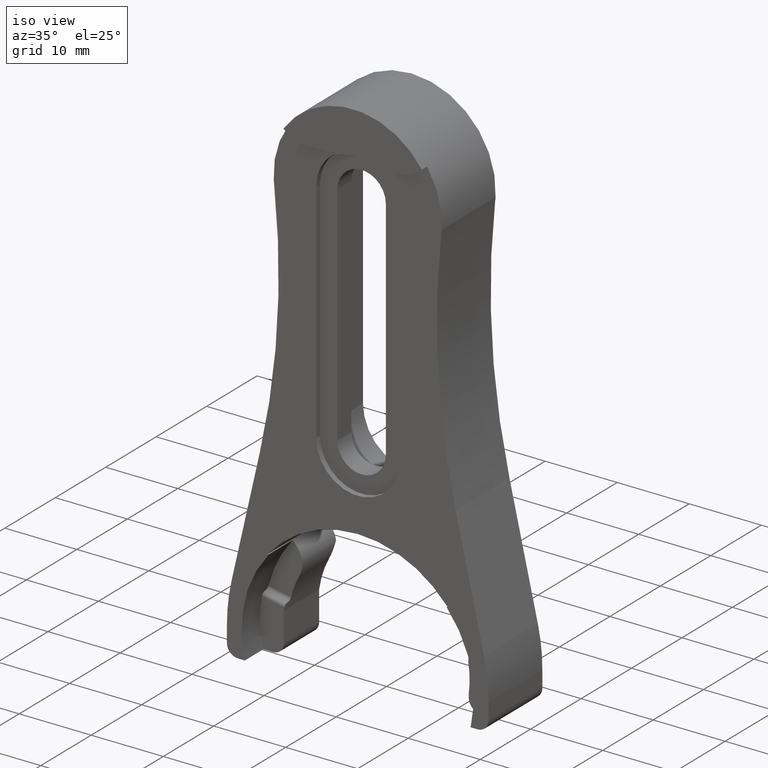
[diagram: clean part render]
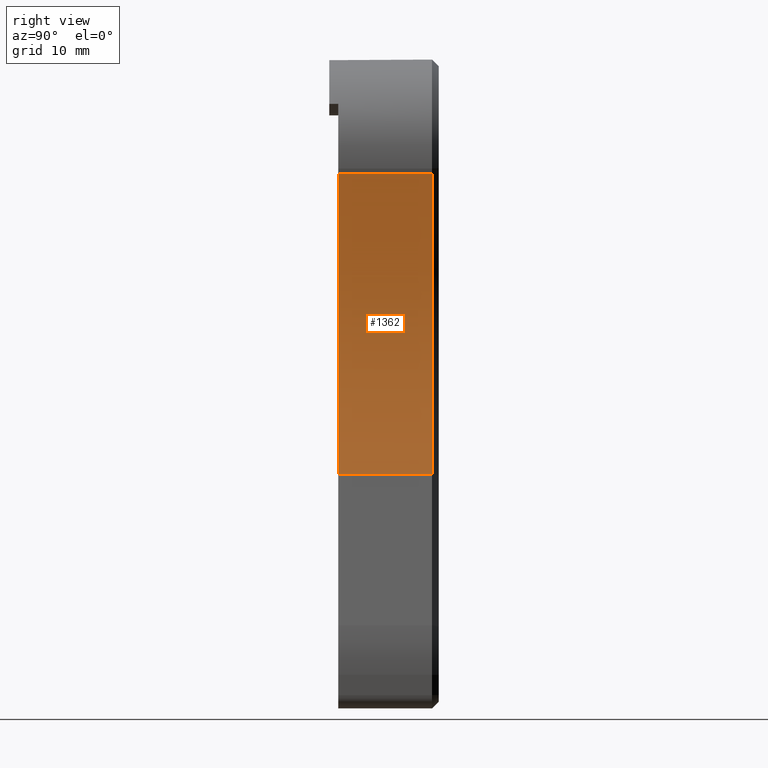
[diagram: tour spotlight — one face highlighted and labeled with its STEP entity id]
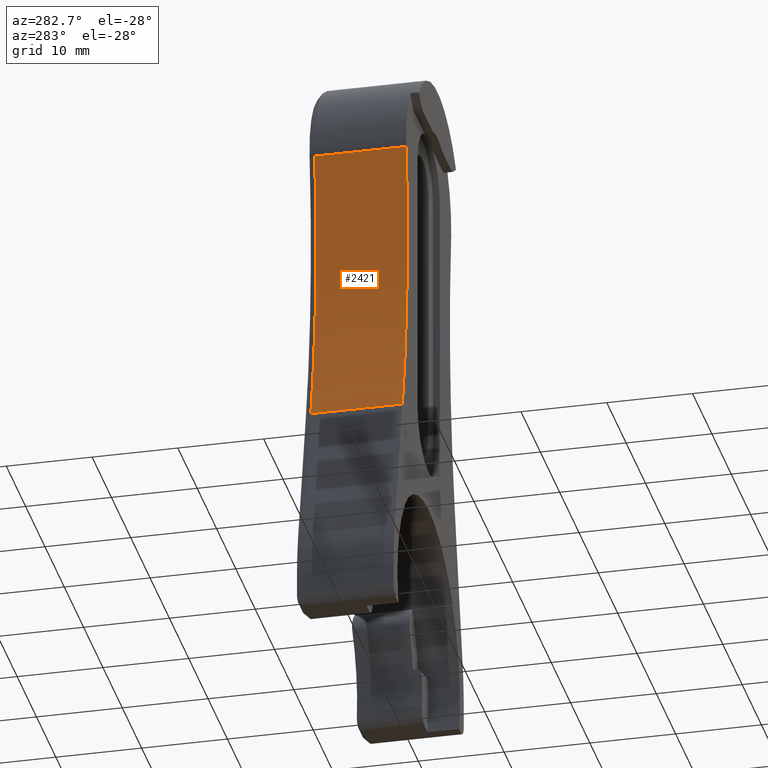
[diagram: tour spotlight — one face highlighted and labeled with its STEP entity id]
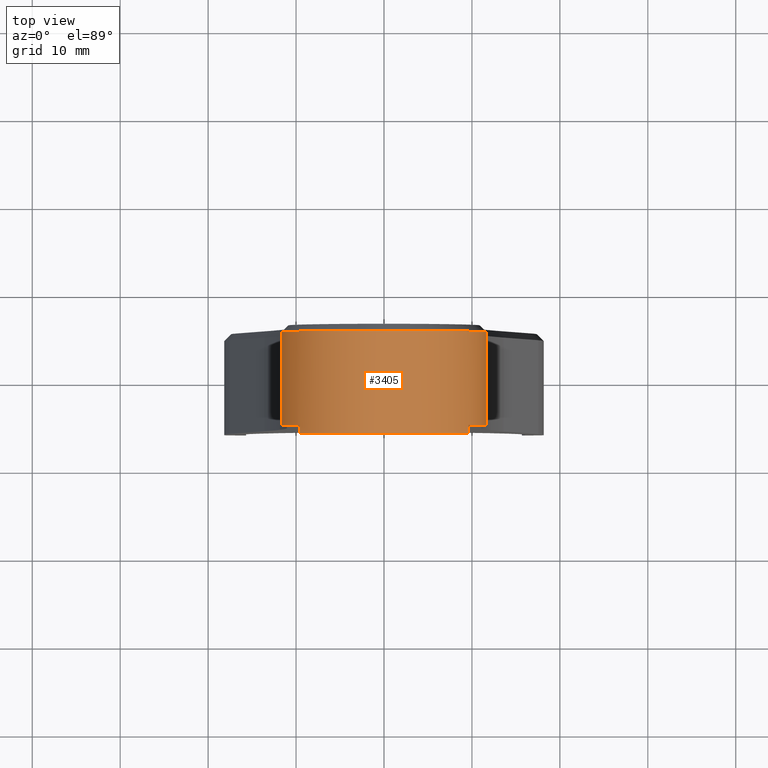
[diagram: tour spotlight — one face highlighted and labeled with its STEP entity id]
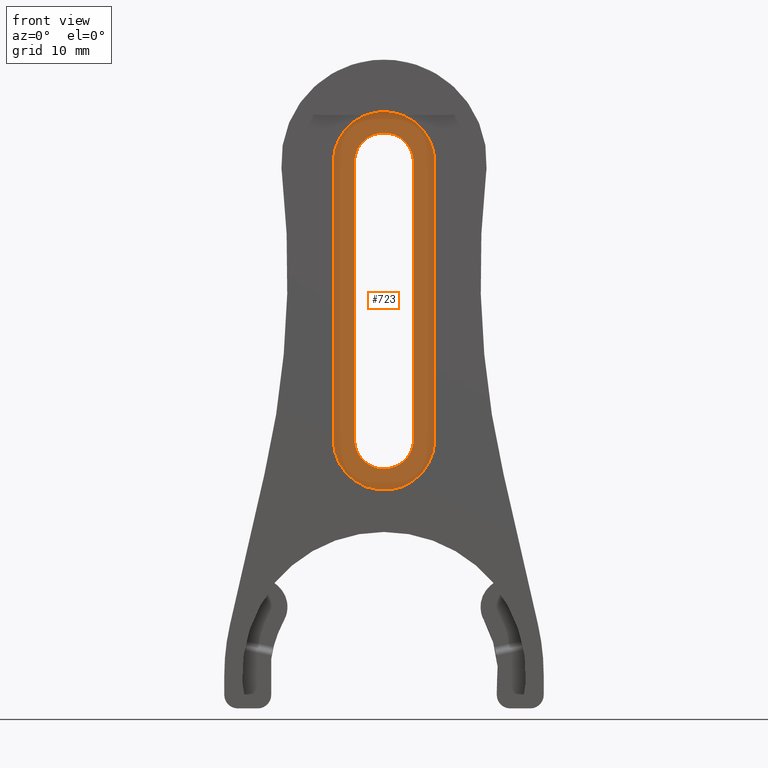
[diagram: tour spotlight — one face highlighted and labeled with its STEP entity id]
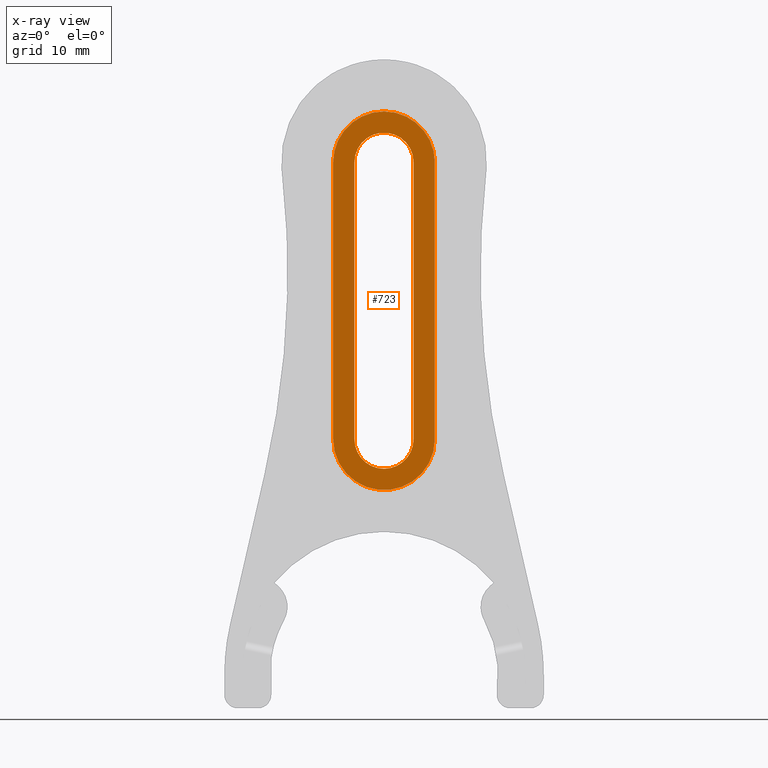
[diagram: x-ray of the same camera — body ghosted, this tour face saturated]
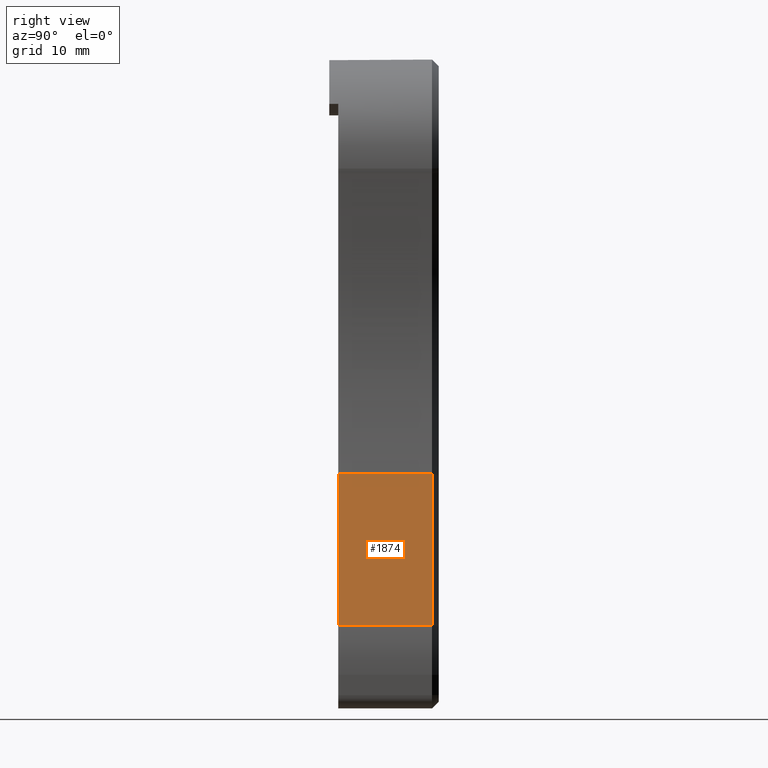
[diagram: tour spotlight — one face highlighted and labeled with its STEP entity id]
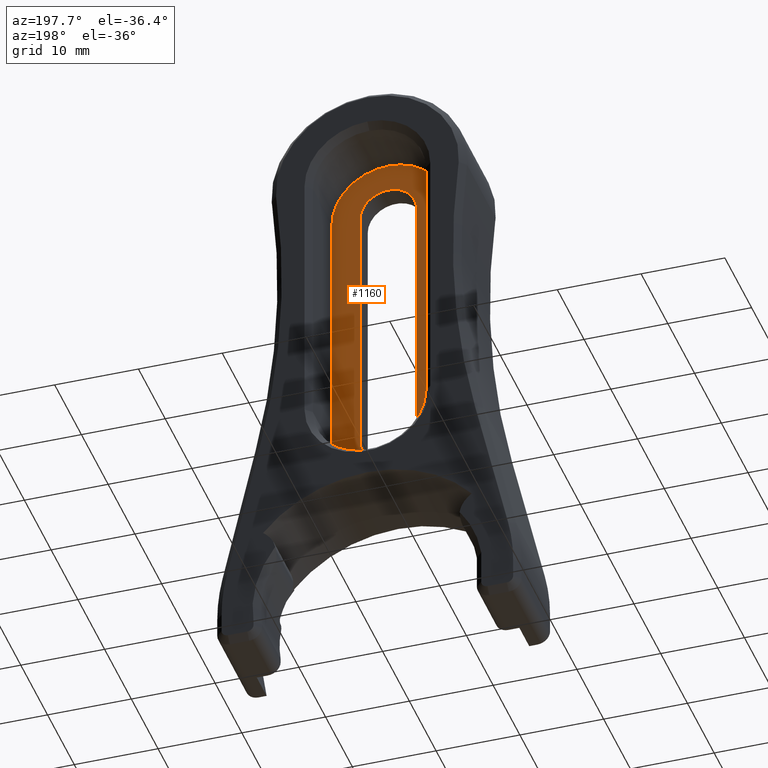
[diagram: tour spotlight — one face highlighted and labeled with its STEP entity id]
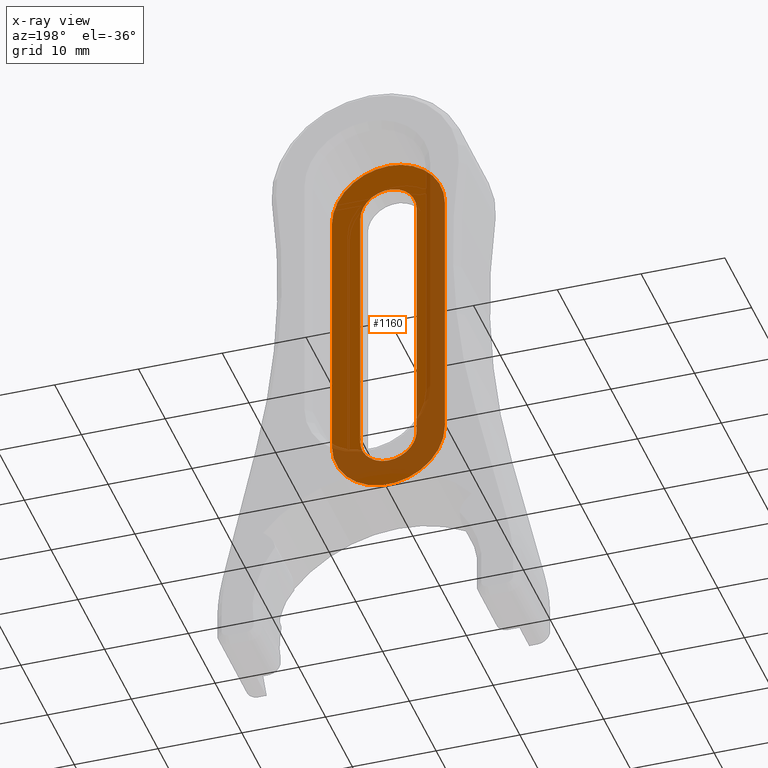
[diagram: x-ray of the same camera — body ghosted, this tour face saturated]
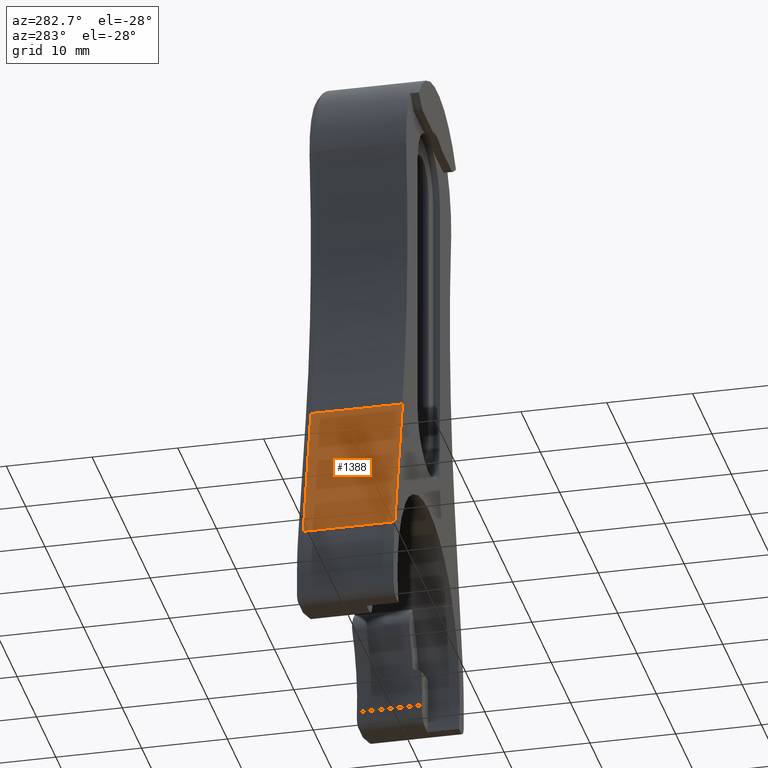
[diagram: tour spotlight — one face highlighted and labeled with its STEP entity id]
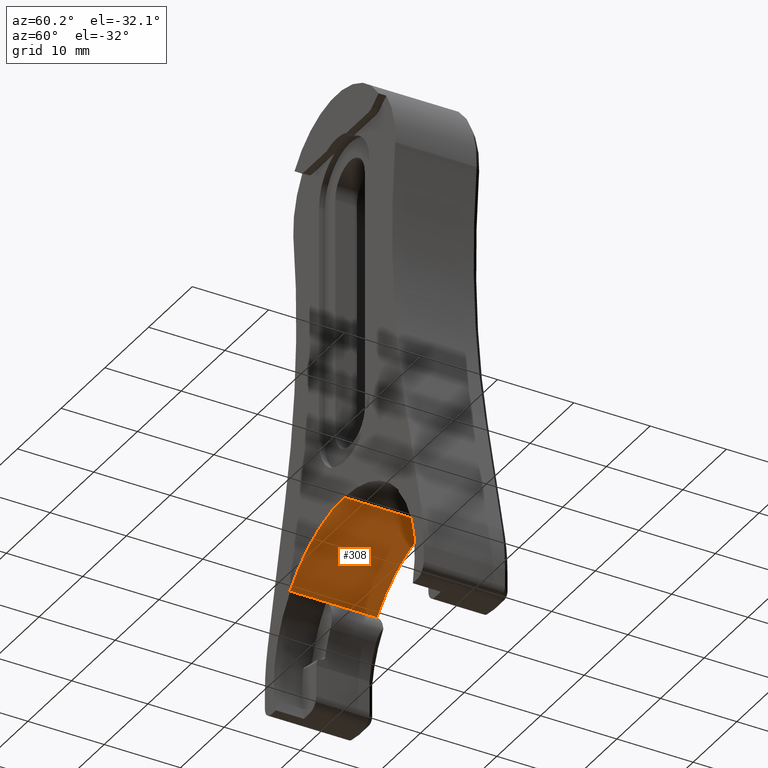
[diagram: tour spotlight — one face highlighted and labeled with its STEP entity id]
A machine part: a face-by-face anatomy tour. The part has 89 B-rep faces; the first image is the clean iso view, then the 8 largest visible faces are spotlighted one at a time (largest first), each with its STEP entity span.

Face 1 — right view, entity #1362. In plain terms, the highlighted cylindrical surface (partial cylindrical patch) has radius 101.6 mm, axis along (-0, -1, -0).
Definition (entity closure, byte-faithful):
#168 = ORIENTED_EDGE ( 'NONE', *, *, #2492, .T. ) ;
#209 = VERTEX_POINT ( 'NONE', #3018 ) ;
#289 = DIRECTION ( 'NONE',  ( -0.0000000000000000000, -1.000000000000000000, -0.0000000000000000000 ) ) ;
#461 = EDGE_LOOP ( 'NONE', ( #784, #3721, #3060, #168 ) ) ;
#700 = VECTOR ( 'NONE', #2055, 39.37007874015748100 ) ;
#784 = ORIENTED_EDGE ( 'NONE', *, *, #2593, .F. ) ;
#854 = EDGE_CURVE ( 'NONE', #3749, #209, #3654, .T. ) ;
#1041 = DIRECTION ( 'NONE',  ( -0.0000000000000000000, -1.000000000000000000, -0.0000000000000000000 ) ) ;
#1291 = AXIS2_PLACEMENT_3D ( 'NONE', #4105, #1041, #2116 ) ;
#1301 = CARTESIAN_POINT ( 'NONE',  ( 0.4570000000000000700, 0.1949999999999989500, 2.245999999999997800 ) ) ;
#1353 = CARTESIAN_POINT ( 'NONE',  ( 0.5350000000000001400, -0.2249999999999999800, 0.8999999999999999100 ) ) ;
#1355 = EDGE_CURVE ( 'NONE', #2167, #3749, #2256, .T. ) ;
#1362 = ADVANCED_FACE ( 'NONE', ( #3526 ), #1977, .F. ) ;
#1404 = CARTESIAN_POINT ( 'NONE',  ( 4.432180960576690000, 0.1949999999999989500, 1.801099639617371100 ) ) ;
#1406 = CARTESIAN_POINT ( 'NONE',  ( 0.5350000000000001400, 0.1949999999999989500, 0.8999999999999999100 ) ) ;
#1748 = DIRECTION ( 'NONE',  ( 0.0000000000000000000, 0.0000000000000000000, 1.000000000000000000 ) ) ;
#1977 = CYLINDRICAL_SURFACE ( 'NONE', #1291, 4.000000000000000900 ) ;
#2055 = DIRECTION ( 'NONE',  ( -0.0000000000000000000, -1.000000000000000000, -0.0000000000000000000 ) ) ;
#2115 = AXIS2_PLACEMENT_3D ( 'NONE', #2374, #289, #2711 ) ;
#2116 = DIRECTION ( 'NONE',  ( 0.0000000000000000000, 0.0000000000000000000, -1.000000000000000000 ) ) ;
#2167 = VERTEX_POINT ( 'NONE', #1406 ) ;
#2256 = CIRCLE ( 'NONE', #3876, 4.000000000000000000 ) ;
#2374 = CARTESIAN_POINT ( 'NONE',  ( 4.432180960576690000, -0.2249999999999999800, 1.801099639617371100 ) ) ;
#2415 = CARTESIAN_POINT ( 'NONE',  ( 0.5350000000000001400, 0.2249999999999999800, 0.8999999999999999100 ) ) ;
#2492 = EDGE_CURVE ( 'NONE', #209, #3571, #4053, .T. ) ;
#2593 = EDGE_CURVE ( 'NONE', #2167, #3571, #4301, .T. ) ;
#2657 = VECTOR ( 'NONE', #4295, 39.37007874015748100 ) ;
#2711 = DIRECTION ( 'NONE',  ( 0.0000000000000000000, 0.0000000000000000000, 1.000000000000000000 ) ) ;
#2993 = CARTESIAN_POINT ( 'NONE',  ( 0.4570000000000000700, 0.2249999999999999800, 2.245999999999997800 ) ) ;
#3018 = CARTESIAN_POINT ( 'NONE',  ( 0.4570000000000000700, -0.2249999999999999800, 2.245999999999997800 ) ) ;
#3060 = ORIENTED_EDGE ( 'NONE', *, *, #854, .T. ) ;
#3526 = FACE_OUTER_BOUND ( 'NONE', #461, .T. ) ;
#3571 = VERTEX_POINT ( 'NONE', #1353 ) ;
#3654 = LINE ( 'NONE', #2993, #2657 ) ;
#3721 = ORIENTED_EDGE ( 'NONE', *, *, #1355, .T. ) ;
#3749 = VERTEX_POINT ( 'NONE', #1301 ) ;
#3768 = DIRECTION ( 'NONE',  ( -0.0000000000000000000, 1.000000000000000000, -0.0000000000000000000 ) ) ;
#3876 = AXIS2_PLACEMENT_3D ( 'NONE', #1404, #3768, #1748 ) ;
#4053 = CIRCLE ( 'NONE', #2115, 4.000000000000000000 ) ;
#4105 = CARTESIAN_POINT ( 'NONE',  ( 4.432180960576690000, 0.2249999999999999800, 1.801099639617371100 ) ) ;
#4295 = DIRECTION ( 'NONE',  ( -0.0000000000000000000, -1.000000000000000000, -0.0000000000000000000 ) ) ;
#4301 = LINE ( 'NONE', #2415, #700 ) ;

Face 2 — auxiliary view, entity #2421. In plain terms, the highlighted cylindrical surface (partial cylindrical patch) has radius 101.6 mm, axis along (-0, -1, -0).
Definition (entity closure, byte-faithful):
#4 = AXIS2_PLACEMENT_3D ( 'NONE', #2985, #3318, #249 ) ;
#77 = CARTESIAN_POINT ( 'NONE',  ( -0.5350000000000001400, 0.1949999999999989500, 0.8999999999999996900 ) ) ;
#78 = VERTEX_POINT ( 'NONE', #1536 ) ;
#183 = DIRECTION ( 'NONE',  ( -0.0000000000000000000, 1.000000000000000000, -0.0000000000000000000 ) ) ;
#249 = DIRECTION ( 'NONE',  ( 0.0000000000000000000, 0.0000000000000000000, -1.000000000000000000 ) ) ;
#368 = EDGE_CURVE ( 'NONE', #3216, #78, #1186, .T. ) ;
#577 = DIRECTION ( 'NONE',  ( 0.0000000000000000000, -1.000000000000000000, 0.0000000000000000000 ) ) ;
#592 = CIRCLE ( 'NONE', #3842, 4.000000000000000000 ) ;
#716 = CARTESIAN_POINT ( 'NONE',  ( -0.4569999999999989600, 0.1949999999999989500, 2.246000000000000000 ) ) ;
#736 = ORIENTED_EDGE ( 'NONE', *, *, #986, .T. ) ;
#774 = VERTEX_POINT ( 'NONE', #3940 ) ;
#900 = EDGE_LOOP ( 'NONE', ( #2935, #736, #4289, #1952 ) ) ;
#986 = EDGE_CURVE ( 'NONE', #3639, #3216, #592, .T. ) ;
#1108 = CARTESIAN_POINT ( 'NONE',  ( -0.4569999999999989600, 0.2249999999999999800, 2.246000000000000000 ) ) ;
#1186 = LINE ( 'NONE', #4286, #2119 ) ;
#1352 = CIRCLE ( 'NONE', #1859, 4.000000000000000000 ) ;
#1536 = CARTESIAN_POINT ( 'NONE',  ( -0.5350000000000001400, -0.2249999999999999800, 0.8999999999999996900 ) ) ;
#1741 = EDGE_CURVE ( 'NONE', #78, #774, #1352, .T. ) ;
#1814 = DIRECTION ( 'NONE',  ( 0.0000000000000000000, 0.0000000000000000000, -1.000000000000000000 ) ) ;
#1859 = AXIS2_PLACEMENT_3D ( 'NONE', #2658, #577, #1814 ) ;
#1882 = LINE ( 'NONE', #1108, #3556 ) ;
#1952 = ORIENTED_EDGE ( 'NONE', *, *, #1741, .T. ) ;
#2119 = VECTOR ( 'NONE', #2954, 39.37007874015748100 ) ;
#2216 = CYLINDRICAL_SURFACE ( 'NONE', #4, 4.000000000000000000 ) ;
#2254 = CARTESIAN_POINT ( 'NONE',  ( -4.432180960576689100, 0.1949999999999989500, 1.801099639617372200 ) ) ;
#2421 = ADVANCED_FACE ( 'NONE', ( #3402 ), #2216, .F. ) ;
#2658 = CARTESIAN_POINT ( 'NONE',  ( -4.432180960576689100, -0.2249999999999999800, 1.801099639617372200 ) ) ;
#2935 = ORIENTED_EDGE ( 'NONE', *, *, #4029, .F. ) ;
#2954 = DIRECTION ( 'NONE',  ( -0.0000000000000000000, -1.000000000000000000, -0.0000000000000000000 ) ) ;
#2956 = DIRECTION ( 'NONE',  ( 0.0000000000000000000, 0.0000000000000000000, 1.000000000000000000 ) ) ;
#2985 = CARTESIAN_POINT ( 'NONE',  ( -4.432180960576689100, 0.2249999999999999800, 1.801099639617372200 ) ) ;
#3151 = DIRECTION ( 'NONE',  ( -0.0000000000000000000, -1.000000000000000000, -0.0000000000000000000 ) ) ;
#3216 = VERTEX_POINT ( 'NONE', #77 ) ;
#3318 = DIRECTION ( 'NONE',  ( -0.0000000000000000000, -1.000000000000000000, -0.0000000000000000000 ) ) ;
#3402 = FACE_OUTER_BOUND ( 'NONE', #900, .T. ) ;
#3556 = VECTOR ( 'NONE', #3151, 39.37007874015748100 ) ;
#3639 = VERTEX_POINT ( 'NONE', #716 ) ;
#3842 = AXIS2_PLACEMENT_3D ( 'NONE', #2254, #183, #2956 ) ;
#3940 = CARTESIAN_POINT ( 'NONE',  ( -0.4569999999999989600, -0.2249999999999999800, 2.246000000000000000 ) ) ;
#4029 = EDGE_CURVE ( 'NONE', #3639, #774, #1882, .T. ) ;
#4286 = CARTESIAN_POINT ( 'NONE',  ( -0.5350000000000001400, 0.2249999999999999800, 0.8999999999999996900 ) ) ;
#4289 = ORIENTED_EDGE ( 'NONE', *, *, #368, .T. ) ;

Face 3 — top view, entity #3405. In plain terms, the highlighted cylindrical surface (partial cylindrical patch) has radius 11.684 mm, axis along (-0, -1, -0).
Definition (entity closure, byte-faithful):
#35 = CARTESIAN_POINT ( 'NONE',  ( 0.3784321572365807500, -0.2249999999999999800, 2.556513101716277900 ) ) ;
#187 = ORIENTED_EDGE ( 'NONE', *, *, #4394, .T. ) ;
#196 = EDGE_CURVE ( 'NONE', #1206, #3491, #360, .T. ) ;
#360 = CIRCLE ( 'NONE', #614, 0.4600000000000000200 ) ;
#437 = ORIENTED_EDGE ( 'NONE', *, *, #2941, .T. ) ;
#516 = DIRECTION ( 'NONE',  ( 0.0000000000000000000, 1.000000000000000000, 0.0000000000000000000 ) ) ;
#614 = AXIS2_PLACEMENT_3D ( 'NONE', #3667, #1984, #1668 ) ;
#635 = VERTEX_POINT ( 'NONE', #35 ) ;
#646 = DIRECTION ( 'NONE',  ( -0.0000000000000000000, 1.000000000000000000, -0.0000000000000000000 ) ) ;
#738 = VECTOR ( 'NONE', #1281, 39.37007874015748100 ) ;
#932 = CARTESIAN_POINT ( 'NONE',  ( 0.3784321572365807500, -0.2649999999999999600, 2.556513101716277900 ) ) ;
#1037 = DIRECTION ( 'NONE',  ( 0.0000000000000000000, 1.000000000000000000, 0.0000000000000000000 ) ) ;
#1116 = ORIENTED_EDGE ( 'NONE', *, *, #4352, .F. ) ;
#1141 = CARTESIAN_POINT ( 'NONE',  ( -0.4591321029601886400, 0.2249999999999999800, 2.266756203666040000 ) ) ;
#1206 = VERTEX_POINT ( 'NONE', #4162 ) ;
#1267 = DIRECTION ( 'NONE',  ( 0.0000000000000000000, -1.000000000000000000, 0.0000000000000000000 ) ) ;
#1281 = DIRECTION ( 'NONE',  ( 0.0000000000000000000, 1.000000000000000000, 0.0000000000000000000 ) ) ;
#1374 = VERTEX_POINT ( 'NONE', #3460 ) ;
#1440 = CARTESIAN_POINT ( 'NONE',  ( 0.3784321572365807500, -0.2649999999999999600, 2.556513101716277900 ) ) ;
#1523 = CARTESIAN_POINT ( 'NONE',  ( 5.948718976097601300E-016, 0.2249999999999999800, 2.294999999999999500 ) ) ;
#1596 = VECTOR ( 'NONE', #1695, 39.37007874015748100 ) ;
#1668 = DIRECTION ( 'NONE',  ( 0.0000000000000000000, 0.0000000000000000000, -1.000000000000000000 ) ) ;
#1675 = EDGE_CURVE ( 'NONE', #3009, #3491, #1975, .T. ) ;
#1693 = VECTOR ( 'NONE', #3844, 39.37007874015748100 ) ;
#1695 = DIRECTION ( 'NONE',  ( -0.0000000000000000000, -1.000000000000000000, -0.0000000000000000000 ) ) ;
#1722 = AXIS2_PLACEMENT_3D ( 'NONE', #3085, #1037, #3426 ) ;
#1746 = CIRCLE ( 'NONE', #1848, 0.4600000000000000200 ) ;
#1768 = ORIENTED_EDGE ( 'NONE', *, *, #196, .T. ) ;
#1848 = AXIS2_PLACEMENT_3D ( 'NONE', #2730, #646, #3050 ) ;
#1871 = AXIS2_PLACEMENT_3D ( 'NONE', #3308, #1267, #3650 ) ;
#1975 = LINE ( 'NONE', #2575, #3669 ) ;
#1984 = DIRECTION ( 'NONE',  ( -0.0000000000000000000, 1.000000000000000000, -0.0000000000000000000 ) ) ;
#2044 = CARTESIAN_POINT ( 'NONE',  ( 0.4591321029601897500, 0.2249999999999999800, 2.266756203666040000 ) ) ;
#2053 = CARTESIAN_POINT ( 'NONE',  ( -0.3784321572365806900, -0.2249999999999999800, 2.556513101716275700 ) ) ;
#2114 = VERTEX_POINT ( 'NONE', #4409 ) ;
#2205 = DIRECTION ( 'NONE',  ( -0.0000000000000000000, -1.000000000000000000, -0.0000000000000000000 ) ) ;
#2288 = DIRECTION ( 'NONE',  ( 0.0000000000000000000, 0.0000000000000000000, -1.000000000000000000 ) ) ;
#2575 = CARTESIAN_POINT ( 'NONE',  ( -0.3784321572365806900, -0.2649999999999999600, 2.556513101716275700 ) ) ;
#2730 = CARTESIAN_POINT ( 'NONE',  ( 5.948718976097601300E-016, -0.2249999999999999800, 2.294999999999999500 ) ) ;
#2926 = ORIENTED_EDGE ( 'NONE', *, *, #3275, .T. ) ;
#2934 = VERTEX_POINT ( 'NONE', #4294 ) ;
#2941 = EDGE_CURVE ( 'NONE', #1374, #2114, #3563, .T. ) ;
#2968 = FACE_OUTER_BOUND ( 'NONE', #4142, .T. ) ;
#2969 = EDGE_CURVE ( 'NONE', #3172, #635, #4334, .T. ) ;
#3009 = VERTEX_POINT ( 'NONE', #3996 ) ;
#3050 = DIRECTION ( 'NONE',  ( 0.0000000000000000000, 0.0000000000000000000, -1.000000000000000000 ) ) ;
#3085 = CARTESIAN_POINT ( 'NONE',  ( 5.948718976097601300E-016, -0.2649999999999999600, 2.294999999999999500 ) ) ;
#3172 = VERTEX_POINT ( 'NONE', #1440 ) ;
#3275 = EDGE_CURVE ( 'NONE', #2114, #1206, #3495, .T. ) ;
#3308 = CARTESIAN_POINT ( 'NONE',  ( 5.948718976097601300E-016, 0.1949999999999989500, 2.294999999999999500 ) ) ;
#3405 = ADVANCED_FACE ( 'NONE', ( #2968 ), #4224, .T. ) ;
#3410 = ORIENTED_EDGE ( 'NONE', *, *, #3472, .T. ) ;
#3426 = DIRECTION ( 'NONE',  ( 0.0000000000000000000, 0.0000000000000000000, 1.000000000000000000 ) ) ;
#3460 = CARTESIAN_POINT ( 'NONE',  ( 0.4591321029601897500, 0.1949999999999989500, 2.266756203666040000 ) ) ;
#3472 = EDGE_CURVE ( 'NONE', #635, #2934, #1746, .T. ) ;
#3491 = VERTEX_POINT ( 'NONE', #2053 ) ;
#3495 = LINE ( 'NONE', #1141, #1693 ) ;
#3563 = CIRCLE ( 'NONE', #1871, 0.4600000000000000200 ) ;
#3582 = ORIENTED_EDGE ( 'NONE', *, *, #2969, .T. ) ;
#3650 = DIRECTION ( 'NONE',  ( 0.0000000000000000000, 0.0000000000000000000, 1.000000000000000000 ) ) ;
#3667 = CARTESIAN_POINT ( 'NONE',  ( 5.948718976097601300E-016, -0.2249999999999999800, 2.294999999999999500 ) ) ;
#3669 = VECTOR ( 'NONE', #516, 39.37007874015748100 ) ;
#3761 = CIRCLE ( 'NONE', #1722, 0.4600000000000000200 ) ;
#3844 = DIRECTION ( 'NONE',  ( -0.0000000000000000000, -1.000000000000000000, -0.0000000000000000000 ) ) ;
#3851 = AXIS2_PLACEMENT_3D ( 'NONE', #1523, #2205, #2288 ) ;
#3996 = CARTESIAN_POINT ( 'NONE',  ( -0.3784321572365806900, -0.2649999999999999600, 2.556513101716275700 ) ) ;
#4142 = EDGE_LOOP ( 'NONE', ( #1116, #437, #2926, #1768, #4148, #187, #3582, #3410 ) ) ;
#4148 = ORIENTED_EDGE ( 'NONE', *, *, #1675, .F. ) ;
#4162 = CARTESIAN_POINT ( 'NONE',  ( -0.4591321029601886400, -0.2249999999999999800, 2.266756203666040000 ) ) ;
#4224 = CYLINDRICAL_SURFACE ( 'NONE', #3851, 0.4600000000000000200 ) ;
#4271 = LINE ( 'NONE', #2044, #1596 ) ;
#4294 = CARTESIAN_POINT ( 'NONE',  ( 0.4591321029601897500, -0.2249999999999999800, 2.266756203666040000 ) ) ;
#4334 = LINE ( 'NONE', #932, #738 ) ;
#4352 = EDGE_CURVE ( 'NONE', #1374, #2934, #4271, .T. ) ;
#4394 = EDGE_CURVE ( 'NONE', #3009, #3172, #3761, .T. ) ;
#4409 = CARTESIAN_POINT ( 'NONE',  ( -0.4591321029601886400, 0.1949999999999989500, 2.266756203666040000 ) ) ;

Face 4 — front view, entity #723. An x-ray twin of the same camera follows (body ghosted, this face saturated) — the face is partly hidden behind the body. In plain terms, the highlighted planar face has unit normal (0, 1, -0).
Definition (entity closure, byte-faithful):
#22 = VERTEX_POINT ( 'NONE', #1918 ) ;
#24 = LINE ( 'NONE', #1480, #4331 ) ;
#53 = DIRECTION ( 'NONE',  ( 0.0000000000000000000, 0.0000000000000000000, 1.000000000000000000 ) ) ;
#68 = CARTESIAN_POINT ( 'NONE',  ( 0.1325000000000005600, -0.1950000000000000300, 2.294999999999999500 ) ) ;
#99 = DIRECTION ( 'NONE',  ( 0.0000000000000000000, 0.0000000000000000000, 1.000000000000000000 ) ) ;
#159 = EDGE_CURVE ( 'NONE', #917, #3783, #2318, .T. ) ;
#185 = VERTEX_POINT ( 'NONE', #1856 ) ;
#255 = LINE ( 'NONE', #3687, #2111 ) ;
#310 = EDGE_CURVE ( 'NONE', #22, #917, #2471, .T. ) ;
#321 = DIRECTION ( 'NONE',  ( 0.0000000000000000000, 0.0000000000000000000, 1.000000000000000000 ) ) ;
#394 = CARTESIAN_POINT ( 'NONE',  ( 5.463695987328526400E-016, -0.1950000000000000300, 2.294999999999999500 ) ) ;
#395 = ORIENTED_EDGE ( 'NONE', *, *, #1581, .F. ) ;
#488 = VERTEX_POINT ( 'NONE', #3839 ) ;
#543 = EDGE_CURVE ( 'NONE', #2519, #1246, #1946, .T. ) ;
#638 = CARTESIAN_POINT ( 'NONE',  ( 0.2274999999999999500, -0.1950000000000000100, 1.055000000000000200 ) ) ;
#647 = EDGE_CURVE ( 'NONE', #2615, #185, #255, .T. ) ;
#662 = EDGE_CURVE ( 'NONE', #3981, #2519, #1181, .T. ) ;
#702 = CARTESIAN_POINT ( 'NONE',  ( -0.2274999999999999500, -0.1950000000000000100, 2.294999999999999500 ) ) ;
#723 = ADVANCED_FACE ( 'NONE', ( #1106, #3716 ), #1956, .F. ) ;
#806 = CARTESIAN_POINT ( 'NONE',  ( 0.2274999999999999500, -0.1950000000000000100, 0.0000000000000000000 ) ) ;
#917 = VERTEX_POINT ( 'NONE', #2691 ) ;
#947 = CARTESIAN_POINT ( 'NONE',  ( 0.0000000000000000000, -0.1950000000000000100, 1.055000000000000200 ) ) ;
#1106 = FACE_BOUND ( 'NONE', #2727, .T. ) ;
#1107 = AXIS2_PLACEMENT_3D ( 'NONE', #1241, #4282, #3956 ) ;
#1158 = DIRECTION ( 'NONE',  ( 0.0000000000000000000, 0.0000000000000000000, -1.000000000000000000 ) ) ;
#1181 = LINE ( 'NONE', #2669, #1995 ) ;
#1191 = VERTEX_POINT ( 'NONE', #1807 ) ;
#1241 = CARTESIAN_POINT ( 'NONE',  ( 0.0000000000000000000, -0.1950000000000000100, 0.0000000000000000000 ) ) ;
#1246 = VERTEX_POINT ( 'NONE', #68 ) ;
#1264 = DIRECTION ( 'NONE',  ( 0.0000000000000000000, 1.000000000000000000, -0.0000000000000000000 ) ) ;
#1298 = DIRECTION ( 'NONE',  ( 0.0000000000000000000, 0.0000000000000000000, 1.000000000000000000 ) ) ;
#1463 = ORIENTED_EDGE ( 'NONE', *, *, #662, .T. ) ;
#1480 = CARTESIAN_POINT ( 'NONE',  ( 0.1325000000000004200, -0.1950000000000000300, 1.055000000000000200 ) ) ;
#1581 = EDGE_CURVE ( 'NONE', #2615, #22, #2194, .T. ) ;
#1802 = ORIENTED_EDGE ( 'NONE', *, *, #310, .F. ) ;
#1803 = ORIENTED_EDGE ( 'NONE', *, *, #543, .T. ) ;
#1807 = CARTESIAN_POINT ( 'NONE',  ( 0.1325000000000004200, -0.1950000000000000300, 1.055000000000000200 ) ) ;
#1816 = DIRECTION ( 'NONE',  ( -1.101551610348493500E-016, 0.0000000000000000000, -1.000000000000000000 ) ) ;
#1856 = CARTESIAN_POINT ( 'NONE',  ( -0.2274999999999999500, -0.1950000000000000100, 1.055000000000000200 ) ) ;
#1863 = ORIENTED_EDGE ( 'NONE', *, *, #3030, .F. ) ;
#1868 = AXIS2_PLACEMENT_3D ( 'NONE', #394, #2482, #53 ) ;
#1918 = CARTESIAN_POINT ( 'NONE',  ( 5.463695987328526400E-016, -0.1950000000000000100, 2.522500000000000400 ) ) ;
#1946 = CIRCLE ( 'NONE', #1868, 0.1325000000000002800 ) ;
#1956 = PLANE ( 'NONE',  #1107 ) ;
#1995 = VECTOR ( 'NONE', #2361, 39.37007874015748100 ) ;
#2111 = VECTOR ( 'NONE', #3324, 39.37007874015748100 ) ;
#2185 = DIRECTION ( 'NONE',  ( 0.0000000000000000000, 1.000000000000000000, -0.0000000000000000000 ) ) ;
#2194 = CIRCLE ( 'NONE', #3039, 0.2275000000000002300 ) ;
#2276 = EDGE_CURVE ( 'NONE', #1246, #1191, #24, .T. ) ;
#2292 = AXIS2_PLACEMENT_3D ( 'NONE', #4199, #2185, #99 ) ;
#2318 = LINE ( 'NONE', #806, #3106 ) ;
#2361 = DIRECTION ( 'NONE',  ( 1.376939512935616900E-016, 0.0000000000000000000, 1.000000000000000000 ) ) ;
#2386 = EDGE_CURVE ( 'NONE', #488, #3981, #3352, .T. ) ;
#2391 = CARTESIAN_POINT ( 'NONE',  ( -0.1324999999999998700, -0.1950000000000000300, 2.294999999999999500 ) ) ;
#2400 = DIRECTION ( 'NONE',  ( 0.0000000000000000000, 1.000000000000000000, -0.0000000000000000000 ) ) ;
#2428 = DIRECTION ( 'NONE',  ( 0.0000000000000000000, 0.0000000000000000000, 1.000000000000000000 ) ) ;
#2471 = CIRCLE ( 'NONE', #3158, 0.2275000000000002300 ) ;
#2482 = DIRECTION ( 'NONE',  ( 0.0000000000000000000, 1.000000000000000000, -0.0000000000000000000 ) ) ;
#2519 = VERTEX_POINT ( 'NONE', #2391 ) ;
#2529 = EDGE_CURVE ( 'NONE', #1191, #488, #3848, .T. ) ;
#2530 = ORIENTED_EDGE ( 'NONE', *, *, #2276, .T. ) ;
#2553 = AXIS2_PLACEMENT_3D ( 'NONE', #947, #3337, #1298 ) ;
#2566 = AXIS2_PLACEMENT_3D ( 'NONE', #4398, #2400, #321 ) ;
#2595 = ORIENTED_EDGE ( 'NONE', *, *, #2529, .T. ) ;
#2615 = VERTEX_POINT ( 'NONE', #702 ) ;
#2669 = CARTESIAN_POINT ( 'NONE',  ( -0.1325000000000004200, -0.1950000000000000300, 1.055000000000000200 ) ) ;
#2691 = CARTESIAN_POINT ( 'NONE',  ( 0.2274999999999999500, -0.1950000000000000100, 2.294999999999999500 ) ) ;
#2727 = EDGE_LOOP ( 'NONE', ( #2595, #3079, #1463, #1803, #2530 ) ) ;
#2763 = ORIENTED_EDGE ( 'NONE', *, *, #159, .F. ) ;
#3030 = EDGE_CURVE ( 'NONE', #3783, #185, #3464, .T. ) ;
#3039 = AXIS2_PLACEMENT_3D ( 'NONE', #3305, #1264, #4172 ) ;
#3079 = ORIENTED_EDGE ( 'NONE', *, *, #2386, .T. ) ;
#3106 = VECTOR ( 'NONE', #1158, 39.37007874015748100 ) ;
#3158 = AXIS2_PLACEMENT_3D ( 'NONE', #4341, #4093, #2428 ) ;
#3305 = CARTESIAN_POINT ( 'NONE',  ( 5.463695987328526400E-016, -0.1950000000000000100, 2.294999999999999900 ) ) ;
#3324 = DIRECTION ( 'NONE',  ( 0.0000000000000000000, 0.0000000000000000000, -1.000000000000000000 ) ) ;
#3337 = DIRECTION ( 'NONE',  ( 0.0000000000000000000, 1.000000000000000000, -0.0000000000000000000 ) ) ;
#3352 = CIRCLE ( 'NONE', #2292, 0.1325000000000004200 ) ;
#3464 = CIRCLE ( 'NONE', #2553, 0.2274999999999999500 ) ;
#3687 = CARTESIAN_POINT ( 'NONE',  ( -0.2274999999999999500, -0.1950000000000000100, -0.0000000000000000000 ) ) ;
#3716 = FACE_OUTER_BOUND ( 'NONE', #4208, .T. ) ;
#3783 = VERTEX_POINT ( 'NONE', #638 ) ;
#3839 = CARTESIAN_POINT ( 'NONE',  ( 0.0000000000000000000, -0.1950000000000000300, 0.9224999999999996500 ) ) ;
#3848 = CIRCLE ( 'NONE', #2566, 0.1325000000000004200 ) ;
#3956 = DIRECTION ( 'NONE',  ( 0.0000000000000000000, 0.0000000000000000000, 1.000000000000000000 ) ) ;
#3981 = VERTEX_POINT ( 'NONE', #4152 ) ;
#4093 = DIRECTION ( 'NONE',  ( 0.0000000000000000000, 1.000000000000000000, -0.0000000000000000000 ) ) ;
#4104 = ORIENTED_EDGE ( 'NONE', *, *, #647, .T. ) ;
#4152 = CARTESIAN_POINT ( 'NONE',  ( -0.1325000000000004200, -0.1950000000000000300, 1.055000000000000200 ) ) ;
#4172 = DIRECTION ( 'NONE',  ( 0.0000000000000000000, 0.0000000000000000000, 1.000000000000000000 ) ) ;
#4199 = CARTESIAN_POINT ( 'NONE',  ( 0.0000000000000000000, -0.1950000000000000300, 1.055000000000000200 ) ) ;
#4208 = EDGE_LOOP ( 'NONE', ( #2763, #1802, #395, #4104, #1863 ) ) ;
#4282 = DIRECTION ( 'NONE',  ( 0.0000000000000000000, 1.000000000000000000, -0.0000000000000000000 ) ) ;
#4331 = VECTOR ( 'NONE', #1816, 39.37007874015748100 ) ;
#4341 = CARTESIAN_POINT ( 'NONE',  ( 5.463695987328526400E-016, -0.1950000000000000100, 2.294999999999999900 ) ) ;
#4398 = CARTESIAN_POINT ( 'NONE',  ( 0.0000000000000000000, -0.1950000000000000300, 1.055000000000000200 ) ) ;

Face 5 — right view, entity #1874. In plain terms, the highlighted planar face has unit normal (-0.9748, 0, -0.2232).
Definition (entity closure, byte-faithful):
#36 = VERTEX_POINT ( 'NONE', #3586 ) ;
#91 = FACE_OUTER_BOUND ( 'NONE', #3838, .T. ) ;
#107 = DIRECTION ( 'NONE',  ( -0.9747780170402723400, 0.0000000000000000000, -0.2231766508733264400 ) ) ;
#125 = VECTOR ( 'NONE', #746, 39.37007874015748900 ) ;
#269 = AXIS2_PLACEMENT_3D ( 'NONE', #2192, #107, #2539 ) ;
#416 = DIRECTION ( 'NONE',  ( -0.0000000000000000000, -1.000000000000000000, -0.0000000000000000000 ) ) ;
#452 = CARTESIAN_POINT ( 'NONE',  ( 0.6899999999999998400, -0.2249999999999999800, 0.2230000000000000600 ) ) ;
#700 = VECTOR ( 'NONE', #2055, 39.37007874015748100 ) ;
#746 = DIRECTION ( 'NONE',  ( -0.2231766508733264200, 0.0000000000000000000, 0.9747780170402722300 ) ) ;
#755 = VECTOR ( 'NONE', #416, 39.37007874015748100 ) ;
#797 = PLANE ( 'NONE',  #269 ) ;
#887 = VECTOR ( 'NONE', #2172, 39.37007874015748900 ) ;
#999 = LINE ( 'NONE', #452, #887 ) ;
#1056 = LINE ( 'NONE', #1079, #125 ) ;
#1079 = CARTESIAN_POINT ( 'NONE',  ( 0.5350000000000001400, 0.1949999999999989500, 0.8999999999999999100 ) ) ;
#1200 = EDGE_CURVE ( 'NONE', #36, #2025, #1671, .T. ) ;
#1353 = CARTESIAN_POINT ( 'NONE',  ( 0.5350000000000001400, -0.2249999999999999800, 0.8999999999999999100 ) ) ;
#1406 = CARTESIAN_POINT ( 'NONE',  ( 0.5350000000000001400, 0.1949999999999989500, 0.8999999999999999100 ) ) ;
#1671 = LINE ( 'NONE', #2159, #755 ) ;
#1874 = ADVANCED_FACE ( 'NONE', ( #91 ), #797, .F. ) ;
#1933 = ORIENTED_EDGE ( 'NONE', *, *, #2593, .T. ) ;
#2025 = VERTEX_POINT ( 'NONE', #2565 ) ;
#2055 = DIRECTION ( 'NONE',  ( -0.0000000000000000000, -1.000000000000000000, -0.0000000000000000000 ) ) ;
#2159 = CARTESIAN_POINT ( 'NONE',  ( 0.6899999999999996100, 0.2249999999999999800, 0.2229999999999999500 ) ) ;
#2167 = VERTEX_POINT ( 'NONE', #1406 ) ;
#2172 = DIRECTION ( 'NONE',  ( 0.2231766508733264700, -0.0000000000000000000, -0.9747780170402722300 ) ) ;
#2192 = CARTESIAN_POINT ( 'NONE',  ( 0.6899999999999998400, 0.2249999999999999800, 0.2230000000000000600 ) ) ;
#2415 = CARTESIAN_POINT ( 'NONE',  ( 0.5350000000000001400, 0.2249999999999999800, 0.8999999999999999100 ) ) ;
#2539 = DIRECTION ( 'NONE',  ( -0.2231766508733264200, 0.0000000000000000000, 0.9747780170402722300 ) ) ;
#2565 = CARTESIAN_POINT ( 'NONE',  ( 0.6899999999999996100, -0.2249999999999999800, 0.2229999999999999500 ) ) ;
#2593 = EDGE_CURVE ( 'NONE', #2167, #3571, #4301, .T. ) ;
#3250 = ORIENTED_EDGE ( 'NONE', *, *, #3921, .T. ) ;
#3571 = VERTEX_POINT ( 'NONE', #1353 ) ;
#3586 = CARTESIAN_POINT ( 'NONE',  ( 0.6899999999999996100, 0.1949999999999989500, 0.2229999999999999500 ) ) ;
#3838 = EDGE_LOOP ( 'NONE', ( #4328, #3250, #1933, #4221 ) ) ;
#3921 = EDGE_CURVE ( 'NONE', #36, #2167, #1056, .T. ) ;
#4082 = EDGE_CURVE ( 'NONE', #3571, #2025, #999, .T. ) ;
#4221 = ORIENTED_EDGE ( 'NONE', *, *, #4082, .T. ) ;
#4301 = LINE ( 'NONE', #2415, #700 ) ;
#4328 = ORIENTED_EDGE ( 'NONE', *, *, #1200, .F. ) ;

Face 6 — auxiliary view, entity #1160. An x-ray twin of the same camera follows (body ghosted, this face saturated) — the face is partly hidden behind the body. In plain terms, the highlighted planar face has unit normal (0, 1, 0).
Definition (entity closure, byte-faithful):
#8 = CARTESIAN_POINT ( 'NONE',  ( -0.1324999999999998700, -0.08499999999999997800, 2.294999999999999500 ) ) ;
#11 = CARTESIAN_POINT ( 'NONE',  ( 0.0000000000000000000, -0.08499999999999997800, 1.055000000000000200 ) ) ;
#33 = PLANE ( 'NONE',  #2303 ) ;
#69 = LINE ( 'NONE', #2499, #2713 ) ;
#71 = DIRECTION ( 'NONE',  ( 8.261637077613702200E-017, 0.0000000000000000000, 1.000000000000000000 ) ) ;
#90 = AXIS2_PLACEMENT_3D ( 'NONE', #994, #3378, #1345 ) ;
#93 = VECTOR ( 'NONE', #71, 39.37007874015748100 ) ;
#169 = AXIS2_PLACEMENT_3D ( 'NONE', #752, #3141, #1099 ) ;
#267 = VERTEX_POINT ( 'NONE', #3447 ) ;
#339 = CARTESIAN_POINT ( 'NONE',  ( -0.2655000000000001200, -0.08499999999999997800, 0.0007937572898362619500 ) ) ;
#358 = DIRECTION ( 'NONE',  ( 0.0000000000000000000, 0.0000000000000000000, 1.000000000000000000 ) ) ;
#418 = CARTESIAN_POINT ( 'NONE',  ( 0.2654999999999999600, -0.08499999999999997800, 0.0007937572898361877900 ) ) ;
#420 = AXIS2_PLACEMENT_3D ( 'NONE', #1836, #4187, #2176 ) ;
#510 = VERTEX_POINT ( 'NONE', #2842 ) ;
#515 = EDGE_CURVE ( 'NONE', #510, #3458, #1853, .T. ) ;
#558 = EDGE_CURVE ( 'NONE', #2210, #2464, #803, .T. ) ;
#559 = VECTOR ( 'NONE', #2426, 39.37007874015748100 ) ;
#679 = LINE ( 'NONE', #339, #559 ) ;
#743 = VERTEX_POINT ( 'NONE', #3624 ) ;
#752 = CARTESIAN_POINT ( 'NONE',  ( 5.463695987328526400E-016, -0.08499999999999997800, 2.294999999999999500 ) ) ;
#778 = DIRECTION ( 'NONE',  ( 1.376939512935616900E-016, 0.0000000000000000000, 1.000000000000000000 ) ) ;
#803 = LINE ( 'NONE', #2141, #4296 ) ;
#993 = ORIENTED_EDGE ( 'NONE', *, *, #1477, .T. ) ;
#994 = CARTESIAN_POINT ( 'NONE',  ( 5.463695987328526400E-016, -0.08499999999999997800, 2.294999999999999500 ) ) ;
#1084 = DIRECTION ( 'NONE',  ( 0.0000000000000000000, 1.000000000000000000, 0.0000000000000000000 ) ) ;
#1099 = DIRECTION ( 'NONE',  ( 0.0000000000000000000, 0.0000000000000000000, 1.000000000000000000 ) ) ;
#1160 = ADVANCED_FACE ( 'NONE', ( #1183, #3889 ), #33, .T. ) ;
#1183 = FACE_BOUND ( 'NONE', #2160, .T. ) ;
#1198 = CIRCLE ( 'NONE', #4159, 0.1325000000000004200 ) ;
#1207 = AXIS2_PLACEMENT_3D ( 'NONE', #3594, #1571, #3932 ) ;
#1222 = CARTESIAN_POINT ( 'NONE',  ( 5.463695987328526400E-016, -0.08499999999999997800, 2.560499999999999800 ) ) ;
#1345 = DIRECTION ( 'NONE',  ( 0.0000000000000000000, 0.0000000000000000000, 1.000000000000000000 ) ) ;
#1399 = ORIENTED_EDGE ( 'NONE', *, *, #3137, .F. ) ;
#1438 = ORIENTED_EDGE ( 'NONE', *, *, #3238, .F. ) ;
#1468 = DIRECTION ( 'NONE',  ( 0.0000000000000000000, 1.000000000000000000, 0.0000000000000000000 ) ) ;
#1477 = EDGE_CURVE ( 'NONE', #2366, #1498, #3616, .T. ) ;
#1498 = VERTEX_POINT ( 'NONE', #1222 ) ;
#1557 = ORIENTED_EDGE ( 'NONE', *, *, #4284, .T. ) ;
#1571 = DIRECTION ( 'NONE',  ( 0.0000000000000000000, 1.000000000000000000, 0.0000000000000000000 ) ) ;
#1623 = ORIENTED_EDGE ( 'NONE', *, *, #3603, .F. ) ;
#1689 = CARTESIAN_POINT ( 'NONE',  ( 0.2655000000000001200, -0.08499999999999997800, 2.294999999999999500 ) ) ;
#1710 = ORIENTED_EDGE ( 'NONE', *, *, #2154, .F. ) ;
#1835 = CARTESIAN_POINT ( 'NONE',  ( -0.2654999999999998500, -0.08499999999999997800, 2.294999999999999500 ) ) ;
#1836 = CARTESIAN_POINT ( 'NONE',  ( 0.0000000000000000000, -0.08499999999999997800, 1.055000000000000200 ) ) ;
#1853 = LINE ( 'NONE', #418, #93 ) ;
#2141 = CARTESIAN_POINT ( 'NONE',  ( 0.1325000000000004200, -0.08499999999999997800, 1.055000000000000200 ) ) ;
#2154 = EDGE_CURVE ( 'NONE', #2366, #267, #679, .T. ) ;
#2160 = EDGE_LOOP ( 'NONE', ( #2162, #3512, #1438, #1399, #1623 ) ) ;
#2162 = ORIENTED_EDGE ( 'NONE', *, *, #558, .F. ) ;
#2176 = DIRECTION ( 'NONE',  ( 0.0000000000000000000, 0.0000000000000000000, 1.000000000000000000 ) ) ;
#2210 = VERTEX_POINT ( 'NONE', #4136 ) ;
#2217 = EDGE_LOOP ( 'NONE', ( #993, #1557, #3580, #2928, #1710 ) ) ;
#2303 = AXIS2_PLACEMENT_3D ( 'NONE', #3483, #1468, #3820 ) ;
#2366 = VERTEX_POINT ( 'NONE', #1835 ) ;
#2426 = DIRECTION ( 'NONE',  ( -1.376939512935616900E-016, 0.0000000000000000000, -1.000000000000000000 ) ) ;
#2443 = DIRECTION ( 'NONE',  ( 0.0000000000000000000, 1.000000000000000000, 0.0000000000000000000 ) ) ;
#2445 = AXIS2_PLACEMENT_3D ( 'NONE', #3126, #1084, #3465 ) ;
#2464 = VERTEX_POINT ( 'NONE', #3024 ) ;
#2499 = CARTESIAN_POINT ( 'NONE',  ( -0.1325000000000004200, -0.08499999999999997800, 1.055000000000000200 ) ) ;
#2713 = VECTOR ( 'NONE', #778, 39.37007874015748100 ) ;
#2842 = CARTESIAN_POINT ( 'NONE',  ( 0.2655000000000000100, -0.08499999999999997800, 1.055000000000000200 ) ) ;
#2928 = ORIENTED_EDGE ( 'NONE', *, *, #3256, .T. ) ;
#3024 = CARTESIAN_POINT ( 'NONE',  ( 0.1325000000000004200, -0.08499999999999997800, 1.055000000000000200 ) ) ;
#3123 = CARTESIAN_POINT ( 'NONE',  ( -0.1325000000000004200, -0.08499999999999997800, 1.055000000000000200 ) ) ;
#3126 = CARTESIAN_POINT ( 'NONE',  ( 0.0000000000000000000, -0.08499999999999997800, 1.055000000000000200 ) ) ;
#3135 = VERTEX_POINT ( 'NONE', #8 ) ;
#3137 = EDGE_CURVE ( 'NONE', #743, #3885, #3332, .T. ) ;
#3141 = DIRECTION ( 'NONE',  ( 0.0000000000000000000, 1.000000000000000000, 0.0000000000000000000 ) ) ;
#3238 = EDGE_CURVE ( 'NONE', #3885, #3135, #69, .T. ) ;
#3256 = EDGE_CURVE ( 'NONE', #510, #267, #3592, .T. ) ;
#3332 = CIRCLE ( 'NONE', #2445, 0.1325000000000004200 ) ;
#3378 = DIRECTION ( 'NONE',  ( 0.0000000000000000000, 1.000000000000000000, 0.0000000000000000000 ) ) ;
#3447 = CARTESIAN_POINT ( 'NONE',  ( -0.2655000000000000100, -0.08499999999999997800, 1.055000000000000200 ) ) ;
#3458 = VERTEX_POINT ( 'NONE', #1689 ) ;
#3465 = DIRECTION ( 'NONE',  ( 0.0000000000000000000, 0.0000000000000000000, 1.000000000000000000 ) ) ;
#3471 = DIRECTION ( 'NONE',  ( -1.101551610348493500E-016, 0.0000000000000000000, -1.000000000000000000 ) ) ;
#3483 = CARTESIAN_POINT ( 'NONE',  ( 5.463695987328526400E-016, -0.08499999999999997800, 2.294999999999999500 ) ) ;
#3504 = CIRCLE ( 'NONE', #90, 0.2654999999999999600 ) ;
#3512 = ORIENTED_EDGE ( 'NONE', *, *, #3720, .F. ) ;
#3580 = ORIENTED_EDGE ( 'NONE', *, *, #515, .F. ) ;
#3592 = CIRCLE ( 'NONE', #420, 0.2654999999999999600 ) ;
#3594 = CARTESIAN_POINT ( 'NONE',  ( 5.463695987328526400E-016, -0.08499999999999997800, 2.294999999999999500 ) ) ;
#3603 = EDGE_CURVE ( 'NONE', #2464, #743, #1198, .T. ) ;
#3616 = CIRCLE ( 'NONE', #1207, 0.2654999999999999600 ) ;
#3624 = CARTESIAN_POINT ( 'NONE',  ( 0.0000000000000000000, -0.08499999999999997800, 0.9224999999999996500 ) ) ;
#3704 = CIRCLE ( 'NONE', #169, 0.1325000000000002800 ) ;
#3720 = EDGE_CURVE ( 'NONE', #3135, #2210, #3704, .T. ) ;
#3820 = DIRECTION ( 'NONE',  ( 0.0000000000000000000, -0.0000000000000000000, 1.000000000000000000 ) ) ;
#3885 = VERTEX_POINT ( 'NONE', #3123 ) ;
#3889 = FACE_OUTER_BOUND ( 'NONE', #2217, .T. ) ;
#3932 = DIRECTION ( 'NONE',  ( 0.0000000000000000000, 0.0000000000000000000, 1.000000000000000000 ) ) ;
#4136 = CARTESIAN_POINT ( 'NONE',  ( 0.1325000000000005600, -0.08499999999999997800, 2.294999999999999500 ) ) ;
#4159 = AXIS2_PLACEMENT_3D ( 'NONE', #11, #2443, #358 ) ;
#4187 = DIRECTION ( 'NONE',  ( 0.0000000000000000000, 1.000000000000000000, 0.0000000000000000000 ) ) ;
#4284 = EDGE_CURVE ( 'NONE', #1498, #3458, #3504, .T. ) ;
#4296 = VECTOR ( 'NONE', #3471, 39.37007874015748100 ) ;

Face 7 — auxiliary view, entity #1388. In plain terms, the highlighted planar face has unit normal (0.9748, 0, -0.2232).
Definition (entity closure, byte-faithful):
#77 = CARTESIAN_POINT ( 'NONE',  ( -0.5350000000000001400, 0.1949999999999989500, 0.8999999999999996900 ) ) ;
#78 = VERTEX_POINT ( 'NONE', #1536 ) ;
#123 = LINE ( 'NONE', #160, #1881 ) ;
#160 = CARTESIAN_POINT ( 'NONE',  ( -0.6899999999999998400, -0.2249999999999999800, 0.2230000000000000600 ) ) ;
#368 = EDGE_CURVE ( 'NONE', #3216, #78, #1186, .T. ) ;
#656 = LINE ( 'NONE', #2614, #3285 ) ;
#759 = EDGE_CURVE ( 'NONE', #3694, #3429, #656, .T. ) ;
#945 = LINE ( 'NONE', #1789, #1888 ) ;
#1186 = LINE ( 'NONE', #4286, #2119 ) ;
#1388 = ADVANCED_FACE ( 'NONE', ( #2892 ), #4153, .F. ) ;
#1478 = DIRECTION ( 'NONE',  ( 0.9747780170402723400, 0.0000000000000000000, -0.2231766508733264400 ) ) ;
#1536 = CARTESIAN_POINT ( 'NONE',  ( -0.5350000000000001400, -0.2249999999999999800, 0.8999999999999996900 ) ) ;
#1553 = ORIENTED_EDGE ( 'NONE', *, *, #1682, .T. ) ;
#1682 = EDGE_CURVE ( 'NONE', #3429, #78, #123, .T. ) ;
#1789 = CARTESIAN_POINT ( 'NONE',  ( -0.6899999999999998400, 0.1949999999999989500, 0.2230000000000000600 ) ) ;
#1881 = VECTOR ( 'NONE', #4241, 39.37007874015748900 ) ;
#1888 = VECTOR ( 'NONE', #2473, 39.37007874015748900 ) ;
#2119 = VECTOR ( 'NONE', #2954, 39.37007874015748100 ) ;
#2219 = EDGE_CURVE ( 'NONE', #3216, #3694, #945, .T. ) ;
#2271 = ORIENTED_EDGE ( 'NONE', *, *, #368, .F. ) ;
#2430 = CARTESIAN_POINT ( 'NONE',  ( -0.6899999999999998400, 0.1949999999999989500, 0.2230000000000000600 ) ) ;
#2473 = DIRECTION ( 'NONE',  ( -0.2231766508733264200, 0.0000000000000000000, -0.9747780170402722300 ) ) ;
#2614 = CARTESIAN_POINT ( 'NONE',  ( -0.6899999999999998400, 0.2249999999999999800, 0.2230000000000000600 ) ) ;
#2661 = CARTESIAN_POINT ( 'NONE',  ( -0.6899999999999998400, -0.2249999999999999800, 0.2230000000000000600 ) ) ;
#2671 = ORIENTED_EDGE ( 'NONE', *, *, #759, .T. ) ;
#2892 = FACE_OUTER_BOUND ( 'NONE', #4238, .T. ) ;
#2954 = DIRECTION ( 'NONE',  ( -0.0000000000000000000, -1.000000000000000000, -0.0000000000000000000 ) ) ;
#3216 = VERTEX_POINT ( 'NONE', #77 ) ;
#3285 = VECTOR ( 'NONE', #4263, 39.37007874015748100 ) ;
#3429 = VERTEX_POINT ( 'NONE', #2661 ) ;
#3490 = CARTESIAN_POINT ( 'NONE',  ( -0.6899999999999998400, 0.2249999999999999800, 0.2230000000000000600 ) ) ;
#3570 = AXIS2_PLACEMENT_3D ( 'NONE', #3490, #1478, #3829 ) ;
#3694 = VERTEX_POINT ( 'NONE', #2430 ) ;
#3816 = ORIENTED_EDGE ( 'NONE', *, *, #2219, .T. ) ;
#3829 = DIRECTION ( 'NONE',  ( -0.2231766508733264200, 0.0000000000000000000, -0.9747780170402722300 ) ) ;
#4153 = PLANE ( 'NONE',  #3570 ) ;
#4238 = EDGE_LOOP ( 'NONE', ( #2271, #3816, #2671, #1553 ) ) ;
#4241 = DIRECTION ( 'NONE',  ( 0.2231766508733264700, 0.0000000000000000000, 0.9747780170402722300 ) ) ;
#4263 = DIRECTION ( 'NONE',  ( -0.0000000000000000000, -1.000000000000000000, -0.0000000000000000000 ) ) ;
#4286 = CARTESIAN_POINT ( 'NONE',  ( -0.5350000000000001400, 0.2249999999999999800, 0.8999999999999996900 ) ) ;

Face 8 — auxiliary view, entity #308. In plain terms, the highlighted cylindrical surface (partial cylindrical patch) has radius 16.256 mm, axis along (-0, 1, -0).
Definition (entity closure, byte-faithful):
#51 = DIRECTION ( 'NONE',  ( -0.0000000000000000000, 1.000000000000000000, -0.0000000000000000000 ) ) ;
#221 = DIRECTION ( 'NONE',  ( -0.0000000000000000000, 1.000000000000000000, -0.0000000000000000000 ) ) ;
#224 = CARTESIAN_POINT ( 'NONE',  ( 0.0000000000000000000, -0.2250000000000141300, 0.6400000000000000100 ) ) ;
#279 = CARTESIAN_POINT ( 'NONE',  ( 0.0000000000000000000, 0.2250000000000141300, 0.0000000000000000000 ) ) ;
#282 = EDGE_LOOP ( 'NONE', ( #3641, #1698, #4027, #2108 ) ) ;
#297 = CIRCLE ( 'NONE', #3884, 0.6400000000000000100 ) ;
#308 = ADVANCED_FACE ( 'NONE', ( #2098 ), #1550, .F. ) ;
#620 = DIRECTION ( 'NONE',  ( 0.0000000000000000000, 0.0000000000000000000, 1.000000000000000000 ) ) ;
#791 = DIRECTION ( 'NONE',  ( 0.0000000000000000000, 1.000000000000000000, 0.0000000000000000000 ) ) ;
#802 = CARTESIAN_POINT ( 'NONE',  ( -0.4902684435961483500, -0.2250000000000141300, 0.4113840701993823900 ) ) ;
#830 = VERTEX_POINT ( 'NONE', #4011 ) ;
#882 = VERTEX_POINT ( 'NONE', #224 ) ;
#1043 = DIRECTION ( 'NONE',  ( -0.0000000000000000000, 1.000000000000000000, -0.0000000000000000000 ) ) ;
#1062 = CARTESIAN_POINT ( 'NONE',  ( 0.0000000000000000000, 0.2250000000000141300, 0.6400000000000000100 ) ) ;
#1086 = VECTOR ( 'NONE', #51, 39.37007874015748100 ) ;
#1550 = CYLINDRICAL_SURFACE ( 'NONE', #3375, 0.6400000000000000100 ) ;
#1551 = VECTOR ( 'NONE', #221, 39.37007874015748100 ) ;
#1634 = CARTESIAN_POINT ( 'NONE',  ( 0.0000000000000000000, -225.0000000000000000, 0.6400000000000000100 ) ) ;
#1698 = ORIENTED_EDGE ( 'NONE', *, *, #2373, .F. ) ;
#1793 = CARTESIAN_POINT ( 'NONE',  ( -0.4902684435961483500, -225.0000000000000000, 0.4113840701993823900 ) ) ;
#2073 = AXIS2_PLACEMENT_3D ( 'NONE', #2865, #791, #3181 ) ;
#2098 = FACE_OUTER_BOUND ( 'NONE', #282, .T. ) ;
#2108 = ORIENTED_EDGE ( 'NONE', *, *, #3047, .T. ) ;
#2243 = VERTEX_POINT ( 'NONE', #1062 ) ;
#2373 = EDGE_CURVE ( 'NONE', #3377, #882, #2572, .T. ) ;
#2472 = LINE ( 'NONE', #1634, #1551 ) ;
#2572 = CIRCLE ( 'NONE', #2073, 0.6400000000000000100 ) ;
#2700 = DIRECTION ( 'NONE',  ( 0.0000000000000000000, 1.000000000000000000, 0.0000000000000000000 ) ) ;
#2736 = EDGE_CURVE ( 'NONE', #3377, #830, #2817, .T. ) ;
#2817 = LINE ( 'NONE', #1793, #1086 ) ;
#2865 = CARTESIAN_POINT ( 'NONE',  ( 0.0000000000000000000, -0.2250000000000141300, 0.0000000000000000000 ) ) ;
#3017 = EDGE_CURVE ( 'NONE', #882, #2243, #2472, .T. ) ;
#3047 = EDGE_CURVE ( 'NONE', #830, #2243, #297, .T. ) ;
#3181 = DIRECTION ( 'NONE',  ( 0.0000000000000000000, 0.0000000000000000000, 1.000000000000000000 ) ) ;
#3375 = AXIS2_PLACEMENT_3D ( 'NONE', #4309, #1043, #3985 ) ;
#3377 = VERTEX_POINT ( 'NONE', #802 ) ;
#3641 = ORIENTED_EDGE ( 'NONE', *, *, #3017, .F. ) ;
#3884 = AXIS2_PLACEMENT_3D ( 'NONE', #279, #2700, #620 ) ;
#3985 = DIRECTION ( 'NONE',  ( 0.0000000000000000000, 0.0000000000000000000, 1.000000000000000000 ) ) ;
#4011 = CARTESIAN_POINT ( 'NONE',  ( -0.4902684435961483500, 0.2250000000000141300, 0.4113840701993823900 ) ) ;
#4027 = ORIENTED_EDGE ( 'NONE', *, *, #2736, .T. ) ;
#4309 = CARTESIAN_POINT ( 'NONE',  ( 0.0000000000000000000, -225.0000000000000000, 0.0000000000000000000 ) ) ;